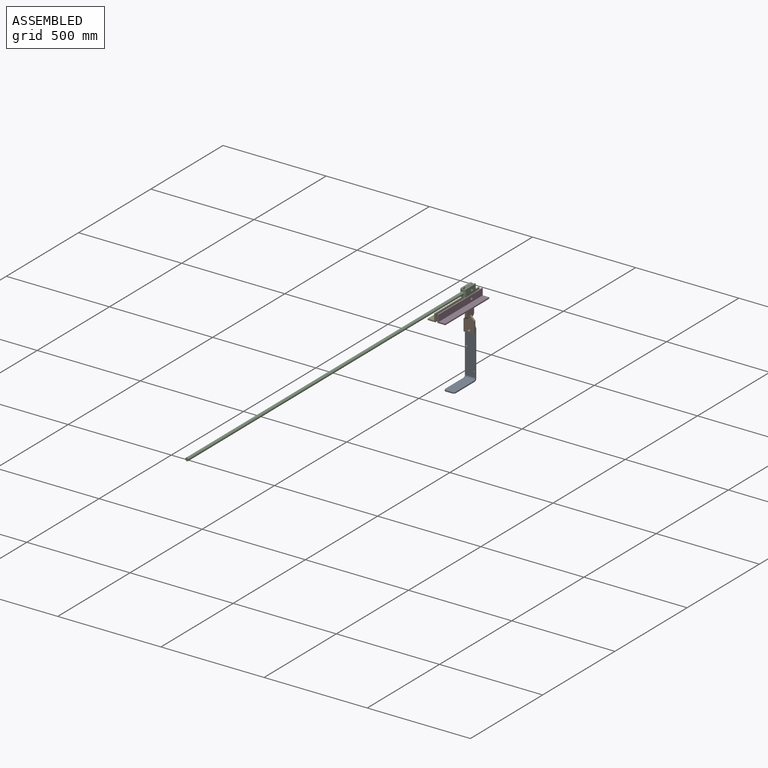
[diagram: assembled view]
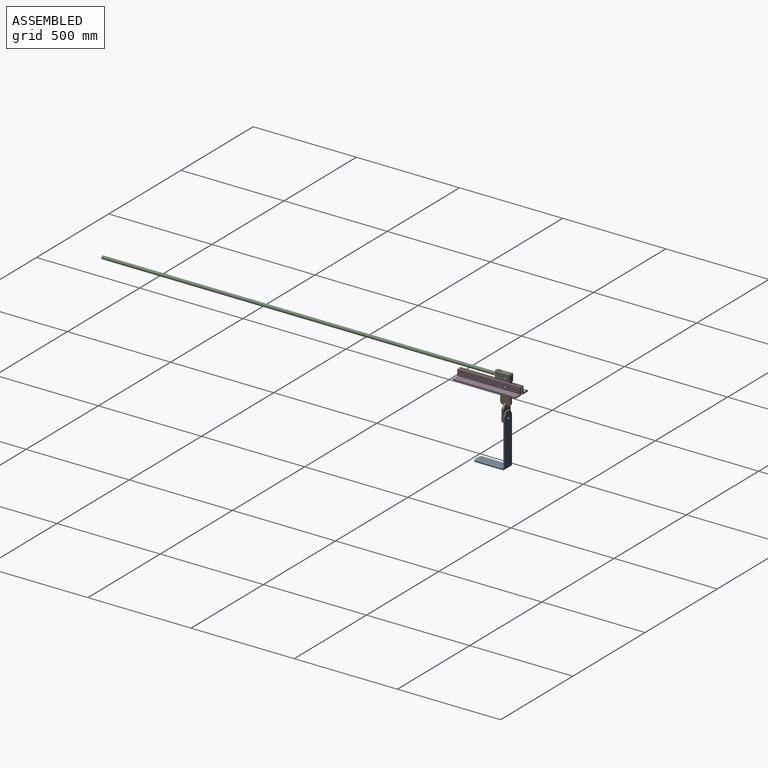
[diagram: assembled view, second angle]
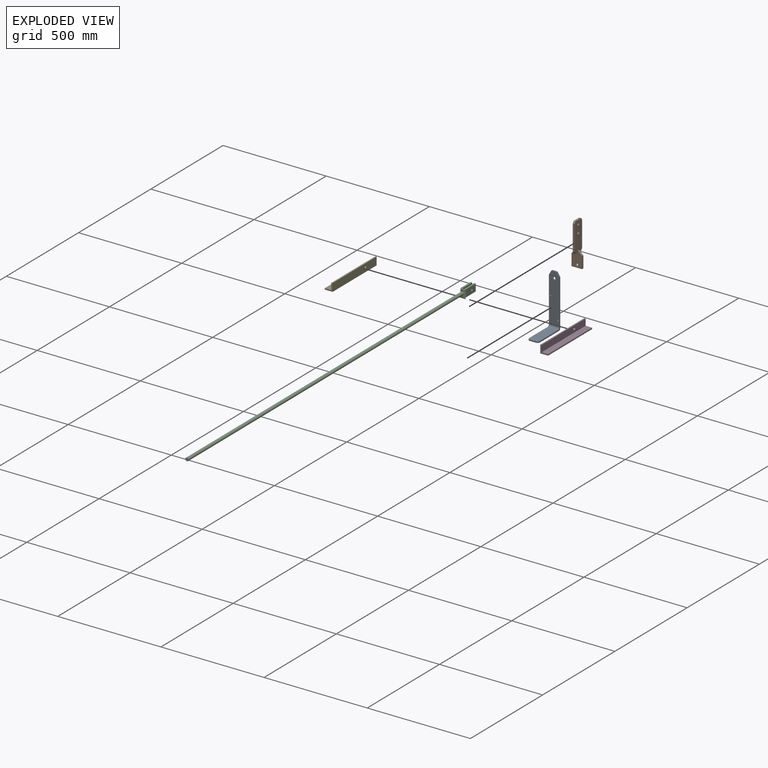
[diagram: exploded view]
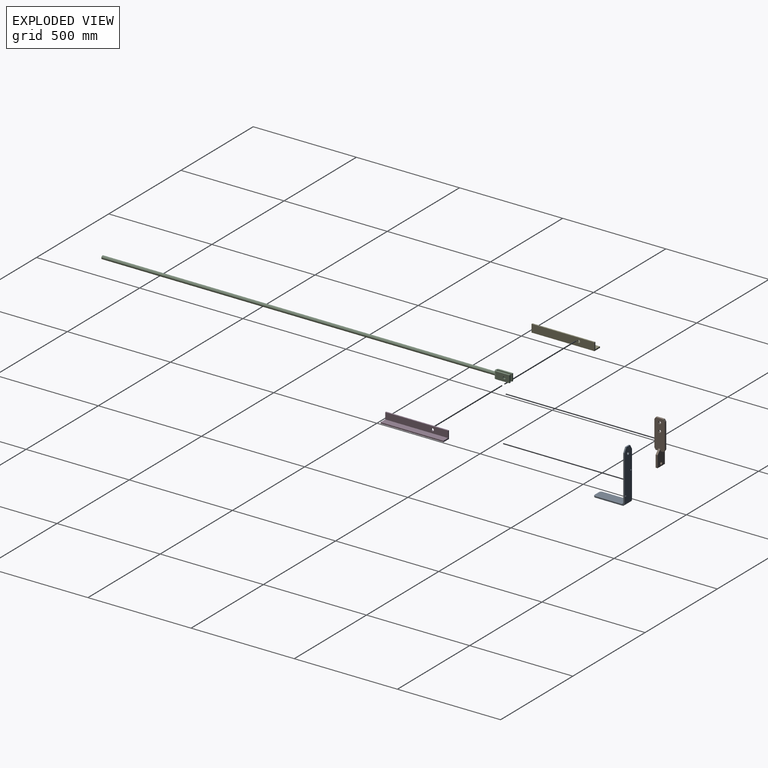
[diagram: exploded view, second angle]
ASSEMBLY  parts=5 mates=4
PART A: 17 faces, bbox 50.8x152.4x254 mm
  f0: plane 135.89x50.8mm, normal (0,0,1), area 6858.9mm2, adj f1,f3,f4,f13,f15,f16
  f1: plane 232.71x142.24mm, normal (-1,0,0), area 2340.6mm2, adj f0,f2,f5,f7,f12,f13,f14,f15
  f2: plane 142.24x50.8mm, normal (0,0,-1), area 7181.5mm2, adj f1,f3,f4,f14,f15,f16
  f3: plane 232.71x142.24mm, normal (1,0,0), area 2340.6mm2, adj f0,f2,f5,f11,f12,f13,f14,f16
  f4: plane 30.48x6.35mm, normal (0,-1,0), area 193.5mm2, adj f0,f2,f15,f16
  f5: plane 243.84x50.8mm, normal (0,1,0), area 11926.6mm2, adj f1,f3,f6,f7,f8,f9,f10,f11
  f6: plane 25.4x6.35mm, normal (0,0,1), area 161.3mm2, adj f5,f7,f11,f12
  f7: plane 21.3x12.7mm, normal (-0.86,0,0.51), area 157.4mm2, adj f1,f5,f6,f12
  f8: cylinder r=3.17mm len=6.35mm, axis (0,1,0), area 126.7mm2, adj f5,f12
  f9: cylinder r=3.17mm len=6.35mm, axis (0,1,0), area 126.7mm2, adj f5,f12
  f10: cylinder r=6.35mm len=12.7mm, axis (0,1,0), area 253.4mm2, adj f5,f12
  f11: plane 21.3x12.7mm, normal (0.86,0,0.51), area 157.4mm2, adj f3,f5,f6,f12
  f12: plane 237.49x50.8mm, normal (0,-1,0), area 11604mm2, adj f1,f3,f6,f7,f8,f9,f10,f11
  f13: cylinder r=10.16mm len=50.8mm, axis (-1,0,0), area 810.7mm2, adj f0,f1,f3,f12
  f14: cylinder r=10.16mm len=50.8mm, axis (1,0,0), area 810.7mm2, adj f1,f2,f3,f5
  f15: cylinder r=10.16mm len=10.16mm, axis (0,0,1), area 101.3mm2, adj f0,f1,f2,f4
  f16: cylinder r=10.16mm len=10.16mm, axis (0,0,-1), area 101.3mm2, adj f0,f2,f3,f4
PART B: 23 faces, bbox 50.8x50.8x209.6 mm
  f0: plane 14.29x9.53mm, normal (0,0,-1), area 136.1mm2, adj f1,f2,f12,f21
  f1: plane 142.87x50.8mm, normal (0,-1,0), area 6792.8mm2, adj f0,f3,f4,f5,f6,f7,f8,f9
  f2: plane 142.87x50.8mm, normal (0,1,0), area 6792.8mm2, adj f0,f3,f4,f5,f6,f7,f8,f9
  f3: plane 14.29x9.53mm, normal (0,0,-1), area 136.1mm2, adj f1,f2,f4,f22
  f4: plane 9.53x9.52mm, normal (0.83,0,-0.55), area 109mm2, adj f1,f2,f3,f5
  f5: plane 123.83x9.53mm, normal (1,0,0), area 1179.5mm2, adj f1,f2,f4,f6
  f6: plane 9.53x9.52mm, normal (0.83,0,0.55), area 109mm2, adj f1,f2,f5,f7
  f7: plane 38.1x9.53mm, normal (0,0,1), area 362.9mm2, adj f1,f2,f6,f8
  f8: plane 9.53x9.52mm, normal (-0.83,0,0.55), area 109mm2, adj f1,f2,f7,f9
  f9: plane 123.83x9.53mm, normal (-1,0,0), area 1179.5mm2, adj f1,f2,f8,f12
  f10: cylinder r=6.35mm len=12.7mm, axis (0,1,0), area 380mm2, adj f1,f2
  f11: cylinder r=6.35mm len=12.7mm, axis (0,1,0), area 380mm2, adj f1,f2
  f12: plane 9.53x9.52mm, normal (-0.83,0,-0.55), area 109mm2, adj f0,f1,f2,f9
  f13: plane 9.53x1.59mm, normal (0,0,1), area 15.1mm2, adj f2,f20,f21,f22
  f14: plane 9.53x1.59mm, normal (0,0,1), area 15.1mm2, adj f1,f15,f21,f22
  f15: plane 19.05x19.05mm, normal (0,-0.71,0.71), area 256.6mm2, adj f14,f16,f21,f22
  f16: plane 57.15x9.53mm, normal (0,-1,0), area 544.4mm2, adj f15,f17,f21,f22
  f17: plane 50.8x9.53mm, normal (0,0,-1), area 483.9mm2, adj f16,f18,f21,f22
  f18: plane 57.15x9.53mm, normal (0,1,0), area 544.4mm2, adj f17,f20,f21,f22
  f19: cylinder r=6.35mm len=12.7mm, axis (1,0,0), area 380mm2, adj f21,f22
  f20: plane 19.05x19.05mm, normal (0,0.71,0.71), area 256.6mm2, adj f13,f18,f21,f22
  f21: plane 76.2x50.8mm, normal (-1,0,0), area 3290.7mm2, adj f0,f1,f2,f13,f14,f15,f16,f17
  f22: plane 76.2x50.8mm, normal (1,0,0), area 3290.7mm2, adj f1,f2,f3,f13,f14,f15,f16,f17
PART C: 21 faces, bbox 25.4x1981.2x34.9 mm
  f0: plane 9.96x5.08mm, normal (0,-1,0), area 49.2mm2, adj f1,f12,f13,f16
  f1: cylinder r=7.94mm len=1905mm, axis (0,1,0), area 95007.7mm2, adj f0,f2,f3,f14,f17
  f2: plane 15.88x15.88mm, normal (0,-1,0), area 197.9mm2, adj f1
  f3: plane 9.94x5.08mm, normal (0,-1,0), area 49.1mm2, adj f1,f11,f15,f18
  f4: plane 67.59x34.94mm, normal (1,0,0), area 2190.8mm2, adj f5,f11,f12,f13,f14,f15,f20
  f5: plane 34.94x7.94mm, normal (0,1,0), area 277.3mm2, adj f4,f6,f11,f12
  f6: plane 69.85x34.94mm, normal (-1,0,0), area 2313.7mm2, adj f5,f7,f11,f12,f20
  f7: plane 34.94x9.53mm, normal (0,1,0), area 332.8mm2, adj f6,f8,f11,f12
  f8: plane 69.85x34.94mm, normal (1,0,0), area 2313.7mm2, adj f7,f9,f11,f12,f19
  f9: plane 34.94x7.94mm, normal (0,1,0), area 277.3mm2, adj f8,f10,f11,f12
  f10: plane 67.59x34.94mm, normal (-1,0,0), area 2190.8mm2, adj f9,f11,f12,f16,f17,f18,f19
  f11: plane 76.2x25.4mm, normal (0,0,1), area 1225.9mm2, adj f3,f4,f5,f6,f7,f8,f9,f10
  f12: plane 76.2x25.4mm, normal (0,0,-1), area 1225.9mm2, adj f0,f4,f5,f6,f7,f8,f9,f10
  f13: cylinder r=10.16mm len=10.16mm, axis (0,0,-1), area 158.9mm2, adj f0,f4,f12,f14
  f14: bspline ~18.12x10.7mm, area 183.2mm2, adj f1,f4,f13,f15
  f15: cylinder r=10.16mm len=10.16mm, axis (0,0,-1), area 158.7mm2, adj f3,f4,f11,f14
  f16: cylinder r=10.16mm len=10.16mm, axis (0,0,-1), area 158.9mm2, adj f0,f10,f12,f17
  f17: bspline ~16.94x10.47mm, area 183.2mm2, adj f1,f10,f16,f18
  f18: cylinder r=10.16mm len=10.16mm, axis (0,0,-1), area 158.7mm2, adj f3,f10,f11,f17
  f19: cylinder r=6.35mm len=12.7mm, axis (1,0,0), area 316.7mm2, adj f8,f10
  f20: cylinder r=6.35mm len=12.7mm, axis (1,0,0), area 316.7mm2, adj f4,f6
PART D: 9 faces, bbox 38.1x304.8x38.1 mm
  f0: plane 304.8x6.35mm, normal (0,0,1), area 1935.5mm2, adj f1,f5,f6,f7
  f1: plane 304.8x38.1mm, normal (-1,0,0), area 11486.2mm2, adj f0,f2,f6,f7,f8
  f2: plane 304.8x38.1mm, normal (0,0,-1), area 11612.9mm2, adj f1,f3,f6,f7
  f3: plane 304.8x6.35mm, normal (1,0,0), area 1935.5mm2, adj f2,f4,f6,f7
  f4: plane 304.8x31.75mm, normal (0,0,1), area 9677.4mm2, adj f3,f5,f6,f7
  f5: plane 304.8x31.75mm, normal (1,0,0), area 9550.7mm2, adj f0,f4,f6,f7,f8
  f6: plane 38.1x38.1mm, normal (0,-1,0), area 443.5mm2, adj f0,f1,f2,f3,f4,f5
  f7: plane 38.1x38.1mm, normal (0,1,0), area 443.5mm2, adj f0,f1,f2,f3,f4,f5
  f8: cylinder r=6.35mm len=12.7mm, axis (1,0,0), area 253.4mm2, adj f1,f5
PART E: 9 faces, bbox 38.1x304.8x38.1 mm
  f0: plane 304.8x38.1mm, normal (1,0,0), area 11486.2mm2, adj f1,f5,f6,f7,f8
  f1: plane 304.8x6.35mm, normal (0,0,1), area 1935.5mm2, adj f0,f2,f6,f7
  f2: plane 304.8x31.75mm, normal (-1,0,0), area 9550.7mm2, adj f1,f3,f6,f7,f8
  f3: plane 304.8x31.75mm, normal (0,0,1), area 9677.4mm2, adj f2,f4,f6,f7
  f4: plane 304.8x6.35mm, normal (-1,0,0), area 1935.5mm2, adj f3,f5,f6,f7
  f5: plane 304.8x38.1mm, normal (0,0,-1), area 11612.9mm2, adj f0,f4,f6,f7
  f6: plane 38.1x38.1mm, normal (0,-1,0), area 443.5mm2, adj f0,f1,f2,f3,f4,f5
  f7: plane 38.1x38.1mm, normal (0,1,0), area 443.5mm2, adj f0,f1,f2,f3,f4,f5
  f8: cylinder r=6.35mm len=12.7mm, axis (1,0,0), area 253.4mm2, adj f0,f2
PLACE A t=(-394.91,710.74,-519.67)mm
PLACE B rot(axis=(0,0,-1),90deg) t=(-390.15,699.63,-217.5)mm
PLACE C t=(-394.91,648.83,-89.36)mm
PLACE D t=(-402.85,775.83,-149.69)mm
PLACE E t=(-386.97,775.83,-149.69)mm
MATE fastened D.f8 <-> B.f11  axis (-1,0,0) through (-390.15,699.63,-127.46)mm
MATE fastened B.f10 <-> C.f19  axis (1,0,0) through (-390.15,699.63,-89.36)mm
MATE fastened E.f8 <-> B.f11  axis (1,0,0) through (-399.67,699.63,-127.46)mm
MATE fastened B.f19 <-> A.f10  axis (0,-1,0) through (-394.91,694.87,-267.16)mm
